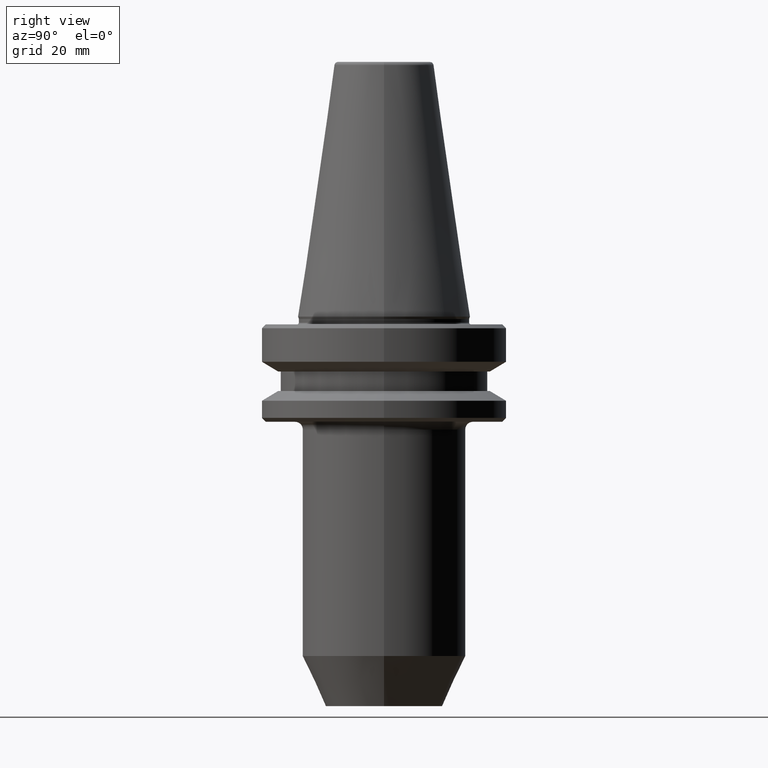
[diagram: clean part render]
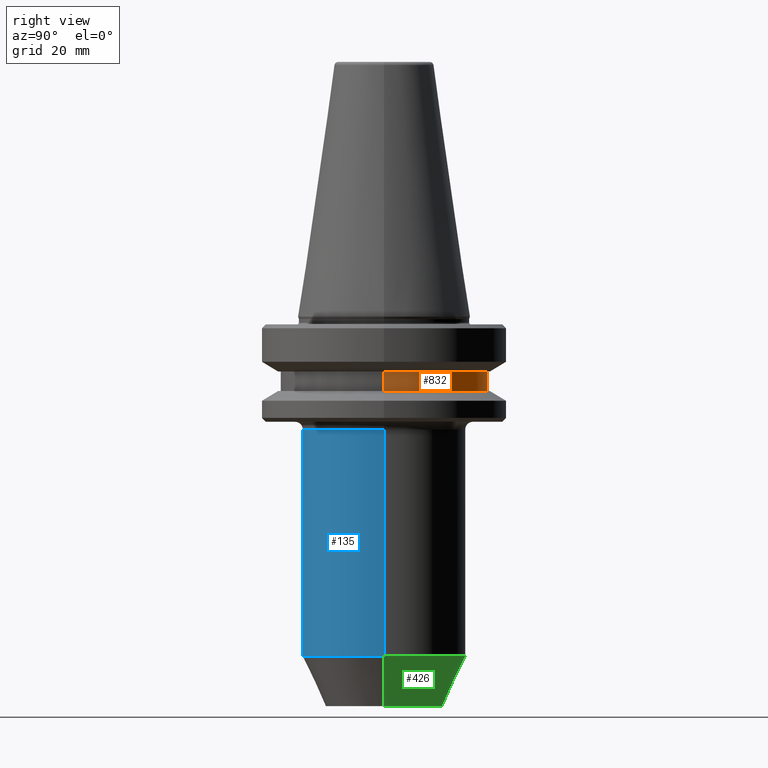
[diagram: same view with three faces highlighted in distinct colors, each labeled with its STEP entity id]
A machine part, right view with three faces highlighted in distinct colors.
Their STEP definitions:

[orange] entity #832 — the highlighted cylindrical surface (partial cylindrical patch) has radius 26.5 mm, axis along (-0, -0, 1).
#25 = DIRECTION ( 'NONE',  ( -0.0000000000000000000, -0.0000000000000000000, 1.000000000000000000 ) ) ;
#34 = DIRECTION ( 'NONE',  ( 1.000000000000000000, 0.0000000000000000000, 0.0000000000000000000 ) ) ;
#41 = FACE_OUTER_BOUND ( 'NONE', #399, .T. ) ;
#51 = DIRECTION ( 'NONE',  ( -0.0000000000000000000, -0.0000000000000000000, 1.000000000000000000 ) ) ;
#101 = CIRCLE ( 'NONE', #151, 26.50000000000041200 ) ;
#129 = DIRECTION ( 'NONE',  ( -0.0000000000000000000, -0.0000000000000000000, 1.000000000000000000 ) ) ;
#131 = EDGE_CURVE ( 'NONE', #507, #330, #214, .T. ) ;
#151 = AXIS2_PLACEMENT_3D ( 'NONE', #874, #129, #418 ) ;
#156 = VECTOR ( 'NONE', #25, 1000.000000000000000 ) ;
#214 = CIRCLE ( 'NONE', #230, 26.50000000000041200 ) ;
#230 = AXIS2_PLACEMENT_3D ( 'NONE', #708, #51, #34 ) ;
#237 = ORIENTED_EDGE ( 'NONE', *, *, #736, .T. ) ;
#306 = EDGE_CURVE ( 'NONE', #507, #383, #728, .T. ) ;
#309 = ORIENTED_EDGE ( 'NONE', *, *, #306, .F. ) ;
#330 = VERTEX_POINT ( 'NONE', #424 ) ;
#332 = ORIENTED_EDGE ( 'NONE', *, *, #501, .F. ) ;
#335 = DIRECTION ( 'NONE',  ( -0.0000000000000000000, -0.0000000000000000000, 1.000000000000000000 ) ) ;
#373 = CARTESIAN_POINT ( 'NONE',  ( 26.50000000000041200, 0.0000000000000000000, 85.38375981632327700 ) ) ;
#381 = ORIENTED_EDGE ( 'NONE', *, *, #131, .T. ) ;
#383 = VERTEX_POINT ( 'NONE', #952 ) ;
#399 = EDGE_LOOP ( 'NONE', ( #381, #237, #332, #309 ) ) ;
#416 = VERTEX_POINT ( 'NONE', #658 ) ;
#418 = DIRECTION ( 'NONE',  ( 1.000000000000000000, 0.0000000000000000000, 0.0000000000000000000 ) ) ;
#424 = CARTESIAN_POINT ( 'NONE',  ( -26.50000000000041200, 3.245314017740536600E-015, -19.10000000010314400 ) ) ;
#433 = DIRECTION ( 'NONE',  ( -0.0000000000000000000, -0.0000000000000000000, 1.000000000000000000 ) ) ;
#443 = CYLINDRICAL_SURFACE ( 'NONE', #748, 26.50000000000041200 ) ;
#499 = CARTESIAN_POINT ( 'NONE',  ( 26.50000000000041200, 0.0000000000000000000, -19.10000000010314400 ) ) ;
#500 = VECTOR ( 'NONE', #433, 1000.000000000000000 ) ;
#501 = EDGE_CURVE ( 'NONE', #383, #416, #101, .T. ) ;
#507 = VERTEX_POINT ( 'NONE', #499 ) ;
#588 = LINE ( 'NONE', #847, #156 ) ;
#658 = CARTESIAN_POINT ( 'NONE',  ( -26.50000000000041200, 3.245314017740536600E-015, -14.09999999999955700 ) ) ;
#708 = CARTESIAN_POINT ( 'NONE',  ( 0.0000000000000000000, 0.0000000000000000000, -19.10000000010314400 ) ) ;
#712 = DIRECTION ( 'NONE',  ( 1.000000000000000000, 0.0000000000000000000, 0.0000000000000000000 ) ) ;
#728 = LINE ( 'NONE', #373, #500 ) ;
#736 = EDGE_CURVE ( 'NONE', #330, #416, #588, .T. ) ;
#748 = AXIS2_PLACEMENT_3D ( 'NONE', #1003, #335, #712 ) ;
#832 = ADVANCED_FACE ( 'NONE', ( #41 ), #443, .T. ) ;
#847 = CARTESIAN_POINT ( 'NONE',  ( -26.50000000000041200, 3.245314017740536600E-015, 85.38375981632327700 ) ) ;
#874 = CARTESIAN_POINT ( 'NONE',  ( 0.0000000000000000000, 0.0000000000000000000, -14.09999999999955700 ) ) ;
#952 = CARTESIAN_POINT ( 'NONE',  ( 26.50000000000041200, 0.0000000000000000000, -14.09999999999955700 ) ) ;
#1003 = CARTESIAN_POINT ( 'NONE',  ( 0.0000000000000000000, 0.0000000000000000000, 85.38375981632327700 ) ) ;

[blue] entity #135 — the highlighted cylindrical surface (partial cylindrical patch) has radius 21 mm, axis along (-0, -0, 1).
#21 = LINE ( 'NONE', #526, #644 ) ;
#23 = DIRECTION ( 'NONE',  ( -0.0000000000000000000, -0.0000000000000000000, 1.000000000000000000 ) ) ;
#26 = EDGE_CURVE ( 'NONE', #930, #542, #272, .T. ) ;
#135 = ADVANCED_FACE ( 'NONE', ( #851 ), #1036, .T. ) ;
#138 = VECTOR ( 'NONE', #312, 1000.000000000000000 ) ;
#161 = CARTESIAN_POINT ( 'NONE',  ( -20.99999999999835200, 2.571758278209240100E-015, -87.13295847706282900 ) ) ;
#180 = EDGE_LOOP ( 'NONE', ( #1012, #1010, #445, #815 ) ) ;
#264 = AXIS2_PLACEMENT_3D ( 'NONE', #370, #591, #850 ) ;
#272 = CIRCLE ( 'NONE', #546, 20.99999999999835200 ) ;
#312 = DIRECTION ( 'NONE',  ( -0.0000000000000000000, -0.0000000000000000000, 1.000000000000000000 ) ) ;
#338 = CARTESIAN_POINT ( 'NONE',  ( 0.0000000000000000000, 0.0000000000000000000, -29.00000000010338800 ) ) ;
#370 = CARTESIAN_POINT ( 'NONE',  ( 0.0000000000000000000, 0.0000000000000000000, -87.13295847706282900 ) ) ;
#374 = DIRECTION ( 'NONE',  ( -0.0000000000000000000, -0.0000000000000000000, 1.000000000000000000 ) ) ;
#397 = EDGE_CURVE ( 'NONE', #613, #930, #21, .T. ) ;
#402 = CARTESIAN_POINT ( 'NONE',  ( 20.99999999999835200, 0.0000000000000000000, 85.38375981632327700 ) ) ;
#411 = CARTESIAN_POINT ( 'NONE',  ( 20.99999999999835200, 0.0000000000000000000, -29.00000000010338800 ) ) ;
#436 = DIRECTION ( 'NONE',  ( -0.0000000000000000000, -0.0000000000000000000, 1.000000000000000000 ) ) ;
#445 = ORIENTED_EDGE ( 'NONE', *, *, #1027, .T. ) ;
#470 = AXIS2_PLACEMENT_3D ( 'NONE', #592, #23, #583 ) ;
#526 = CARTESIAN_POINT ( 'NONE',  ( -20.99999999999835200, 2.571758278209240100E-015, 85.38375981632327700 ) ) ;
#542 = VERTEX_POINT ( 'NONE', #411 ) ;
#546 = AXIS2_PLACEMENT_3D ( 'NONE', #338, #436, #710 ) ;
#583 = DIRECTION ( 'NONE',  ( 1.000000000000000000, 0.0000000000000000000, 0.0000000000000000000 ) ) ;
#591 = DIRECTION ( 'NONE',  ( -0.0000000000000000000, -0.0000000000000000000, 1.000000000000000000 ) ) ;
#592 = CARTESIAN_POINT ( 'NONE',  ( 0.0000000000000000000, 0.0000000000000000000, 85.38375981632327700 ) ) ;
#594 = EDGE_CURVE ( 'NONE', #613, #895, #714, .T. ) ;
#613 = VERTEX_POINT ( 'NONE', #161 ) ;
#644 = VECTOR ( 'NONE', #374, 1000.000000000000000 ) ;
#710 = DIRECTION ( 'NONE',  ( 1.000000000000000000, 0.0000000000000000000, 0.0000000000000000000 ) ) ;
#714 = CIRCLE ( 'NONE', #264, 20.99999999999835200 ) ;
#793 = LINE ( 'NONE', #402, #138 ) ;
#815 = ORIENTED_EDGE ( 'NONE', *, *, #26, .F. ) ;
#850 = DIRECTION ( 'NONE',  ( 1.000000000000000000, 0.0000000000000000000, 0.0000000000000000000 ) ) ;
#851 = FACE_OUTER_BOUND ( 'NONE', #180, .T. ) ;
#895 = VERTEX_POINT ( 'NONE', #1001 ) ;
#928 = CARTESIAN_POINT ( 'NONE',  ( -20.99999999999835200, 2.571758278209240100E-015, -29.00000000010338800 ) ) ;
#930 = VERTEX_POINT ( 'NONE', #928 ) ;
#1001 = CARTESIAN_POINT ( 'NONE',  ( 20.99999999999835200, 0.0000000000000000000, -87.13295847706282900 ) ) ;
#1010 = ORIENTED_EDGE ( 'NONE', *, *, #594, .T. ) ;
#1012 = ORIENTED_EDGE ( 'NONE', *, *, #397, .F. ) ;
#1027 = EDGE_CURVE ( 'NONE', #895, #542, #793, .T. ) ;
#1036 = CYLINDRICAL_SURFACE ( 'NONE', #470, 20.99999999999835200 ) ;

[green] entity #426 — the highlighted conical surface has half-angle 25 deg.
#90 = VERTEX_POINT ( 'NONE', #902 ) ;
#161 = CARTESIAN_POINT ( 'NONE',  ( -20.99999999999835200, 2.571758278209240100E-015, -87.13295847706282900 ) ) ;
#206 = ORIENTED_EDGE ( 'NONE', *, *, #786, .F. ) ;
#246 = VECTOR ( 'NONE', #1023, 1000.000000000000000 ) ;
#258 = DIRECTION ( 'NONE',  ( 0.4226182617406976100, 0.0000000000000000000, 0.9063077870366508200 ) ) ;
#267 = CARTESIAN_POINT ( 'NONE',  ( 14.99999999999857000, 0.0000000000000000000, -100.0000000001197800 ) ) ;
#273 = LINE ( 'NONE', #799, #246 ) ;
#291 = DIRECTION ( 'NONE',  ( -0.0000000000000000000, -0.0000000000000000000, 1.000000000000000000 ) ) ;
#295 = CARTESIAN_POINT ( 'NONE',  ( 0.0000000000000000000, 0.0000000000000000000, -100.0000000001197800 ) ) ;
#297 = CIRCLE ( 'NONE', #562, 20.99999999999835200 ) ;
#369 = CIRCLE ( 'NONE', #675, 14.99999999999857000 ) ;
#426 = ADVANCED_FACE ( 'NONE', ( #617 ), #996, .T. ) ;
#441 = VERTEX_POINT ( 'NONE', #669 ) ;
#513 = AXIS2_PLACEMENT_3D ( 'NONE', #295, #896, #595 ) ;
#519 = DIRECTION ( 'NONE',  ( 1.000000000000000000, 0.0000000000000000000, 0.0000000000000000000 ) ) ;
#562 = AXIS2_PLACEMENT_3D ( 'NONE', #821, #291, #519 ) ;
#595 = DIRECTION ( 'NONE',  ( 1.000000000000000000, 0.0000000000000000000, 0.0000000000000000000 ) ) ;
#613 = VERTEX_POINT ( 'NONE', #161 ) ;
#617 = FACE_OUTER_BOUND ( 'NONE', #668, .T. ) ;
#631 = LINE ( 'NONE', #267, #820 ) ;
#636 = DIRECTION ( 'NONE',  ( -0.0000000000000000000, -0.0000000000000000000, 1.000000000000000000 ) ) ;
#657 = EDGE_CURVE ( 'NONE', #90, #895, #631, .T. ) ;
#668 = EDGE_LOOP ( 'NONE', ( #1011, #854, #206, #823 ) ) ;
#669 = CARTESIAN_POINT ( 'NONE',  ( -14.99999999999857000, 2.204364238465047700E-015, -100.0000000001197800 ) ) ;
#675 = AXIS2_PLACEMENT_3D ( 'NONE', #883, #636, #842 ) ;
#786 = EDGE_CURVE ( 'NONE', #895, #613, #297, .T. ) ;
#799 = CARTESIAN_POINT ( 'NONE',  ( -14.99999999999857000, 1.836970198720854900E-015, -100.0000000001197800 ) ) ;
#800 = EDGE_CURVE ( 'NONE', #90, #441, #369, .T. ) ;
#812 = EDGE_CURVE ( 'NONE', #441, #613, #273, .T. ) ;
#820 = VECTOR ( 'NONE', #258, 1000.000000000000000 ) ;
#821 = CARTESIAN_POINT ( 'NONE',  ( 0.0000000000000000000, 0.0000000000000000000, -87.13295847706282900 ) ) ;
#823 = ORIENTED_EDGE ( 'NONE', *, *, #657, .F. ) ;
#842 = DIRECTION ( 'NONE',  ( 1.000000000000000000, 0.0000000000000000000, 0.0000000000000000000 ) ) ;
#854 = ORIENTED_EDGE ( 'NONE', *, *, #812, .T. ) ;
#883 = CARTESIAN_POINT ( 'NONE',  ( 0.0000000000000000000, 0.0000000000000000000, -100.0000000001197800 ) ) ;
#895 = VERTEX_POINT ( 'NONE', #1001 ) ;
#896 = DIRECTION ( 'NONE',  ( -0.0000000000000000000, -0.0000000000000000000, 1.000000000000000000 ) ) ;
#902 = CARTESIAN_POINT ( 'NONE',  ( 14.99999999999857000, 0.0000000000000000000, -100.0000000001197800 ) ) ;
#996 = CONICAL_SURFACE ( 'NONE', #513, 14.99999999999857000, 0.4363323129985803800 ) ;
#1001 = CARTESIAN_POINT ( 'NONE',  ( 20.99999999999835200, 0.0000000000000000000, -87.13295847706282900 ) ) ;
#1011 = ORIENTED_EDGE ( 'NONE', *, *, #800, .T. ) ;
#1023 = DIRECTION ( 'NONE',  ( -0.4226182617406976100, 5.175581015019636600E-017, 0.9063077870366508200 ) ) ;